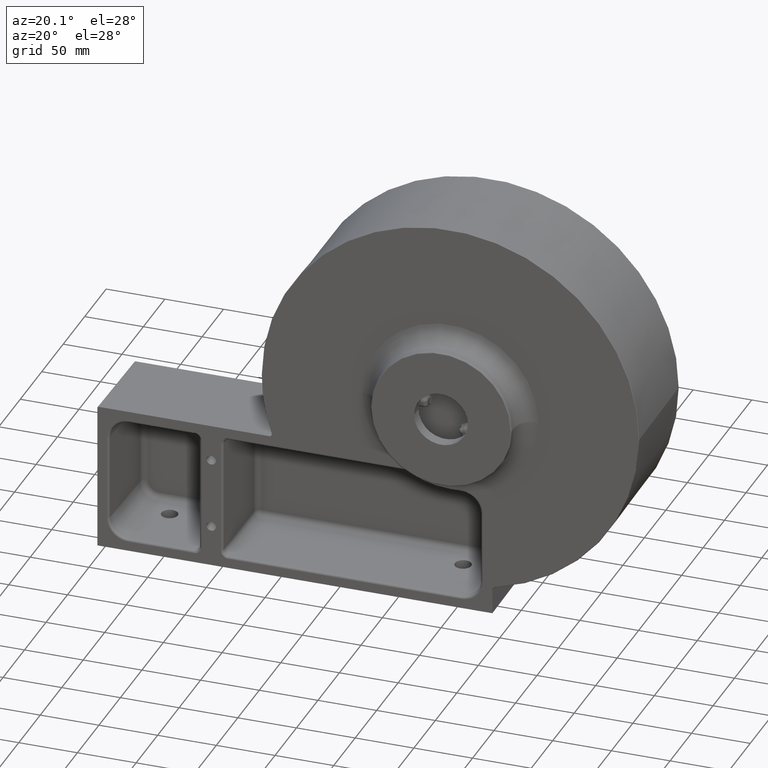
[diagram: clean part render]
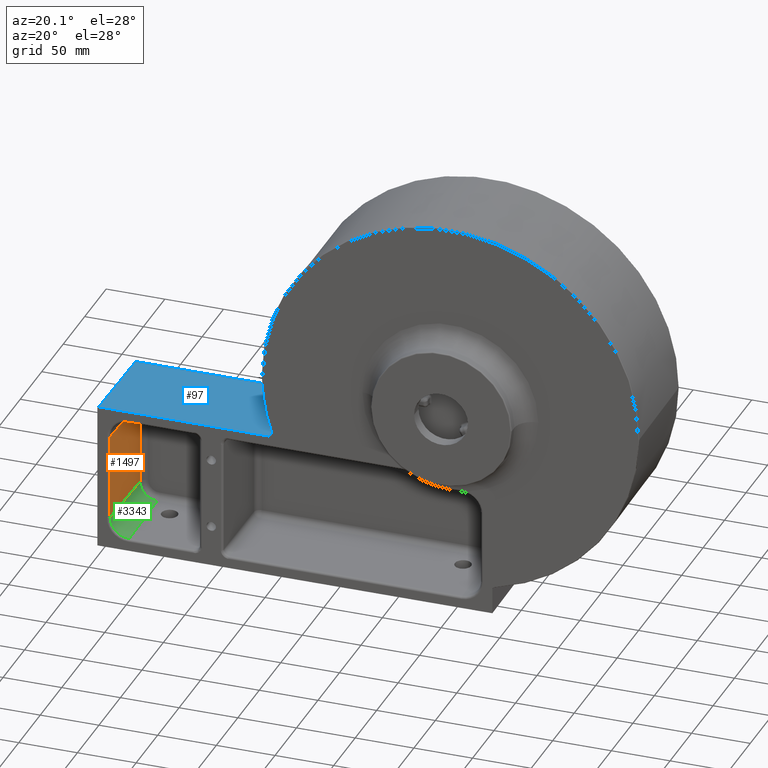
[diagram: same view with three faces highlighted in distinct colors, each labeled with its STEP entity id]
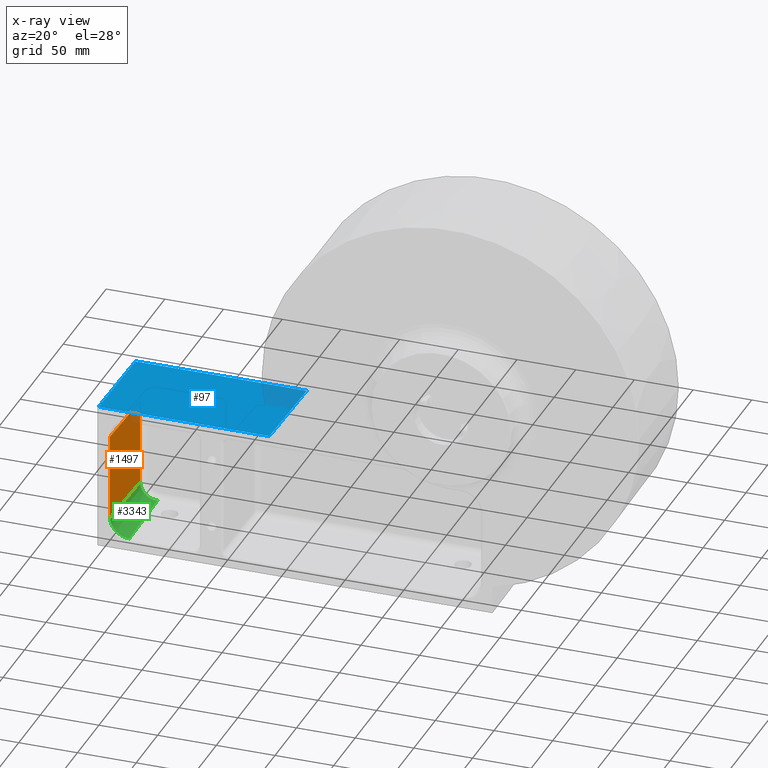
[diagram: x-ray of the same camera — body ghosted, the three highlighted faces saturated]
A machine part, auxiliary view with three faces highlighted in distinct colors.
The next image is the same camera in x-ray (body ghosted, the three faces saturated) — at least one of them is partly hidden behind the body in this view.
Their STEP definitions:

[orange] entity #1497 — the highlighted planar face has unit normal (-0.9997, 0.0262, 0).
#712 = DIRECTION ( 'NONE',  ( -0.9996573249755573709, 0.02617694830787333643, 7.628645611379419162E-16 ) ) ;
#837 = CARTESIAN_POINT ( 'NONE',  ( -290.6907828541067147, 23.74703707613694803, -153.4999999999999432 ) ) ;
#1096 = VERTEX_POINT ( 'NONE', #2088 ) ;
#1133 = CARTESIAN_POINT ( 'NONE',  ( -290.7417837622144816, 21.79939097275270043, -153.4999999999999432 ) ) ;
#1252 = VERTEX_POINT ( 'NONE', #9086 ) ;
#1446 = FACE_OUTER_BOUND ( 'NONE', #9372, .T. ) ;
#1497 = ADVANCED_FACE ( 'NONE', ( #1446 ), #4405, .F. ) ;
#1585 = ORIENTED_EDGE ( 'NONE', *, *, #5652, .F. ) ;
#1786 = ORIENTED_EDGE ( 'NONE', *, *, #4000, .F. ) ;
#1876 = DIRECTION ( 'NONE',  ( -0.02617694830787333296, -0.9996573249755572599, 1.997631156587039436E-17 ) ) ;
#2088 = CARTESIAN_POINT ( 'NONE',  ( -290.6907828541066579, 23.74703707613694803, -80.75821623778543312 ) ) ;
#2347 = CARTESIAN_POINT ( 'NONE',  ( -288.9838996795023149, 88.93027571429206546, -80.75821623778543312 ) ) ;
#2474 = DIRECTION ( 'NONE',  ( 7.631260653810491588E-16, -9.810842758281116247E-32, 1.000000000000000000 ) ) ;
#3213 = VECTOR ( 'NONE', #9257, 1000.000000000000000 ) ;
#3311 = LINE ( 'NONE', #6275, #3213 ) ;
#3572 = ORIENTED_EDGE ( 'NONE', *, *, #7507, .F. ) ;
#3682 = DIRECTION ( 'NONE',  ( 0.02617694830787333296, 0.9996573249755572599, 0.0000000000000000000 ) ) ;
#4000 = EDGE_CURVE ( 'NONE', #8700, #1252, #3311, .T. ) ;
#4101 = DIRECTION ( 'NONE',  ( -0.02617694830787333296, -0.9996573249755572599, 0.0000000000000000000 ) ) ;
#4369 = ORIENTED_EDGE ( 'NONE', *, *, #9478, .T. ) ;
#4405 = PLANE ( 'NONE',  #5319 ) ;
#5319 = AXIS2_PLACEMENT_3D ( 'NONE', #7387, #712, #3682 ) ;
#5652 = EDGE_CURVE ( 'NONE', #8688, #1096, #6169, .T. ) ;
#6169 = LINE ( 'NONE', #9148, #9598 ) ;
#6275 = CARTESIAN_POINT ( 'NONE',  ( -288.9838996795023718, 88.93027571429207967, -153.4999999999999432 ) ) ;
#6294 = LINE ( 'NONE', #8544, #6533 ) ;
#6533 = VECTOR ( 'NONE', #1876, 1000.000000000000114 ) ;
#6813 = VECTOR ( 'NONE', #4101, 1000.000000000000114 ) ;
#7387 = CARTESIAN_POINT ( 'NONE',  ( -290.7417837622144816, 21.79939097275269688, -153.4999999999999432 ) ) ;
#7507 = EDGE_CURVE ( 'NONE', #1252, #8688, #7804, .T. ) ;
#7804 = LINE ( 'NONE', #1133, #6813 ) ;
#8544 = CARTESIAN_POINT ( 'NONE',  ( -290.7417837622144248, 21.79939097275269688, -80.75821623778543312 ) ) ;
#8688 = VERTEX_POINT ( 'NONE', #837 ) ;
#8700 = VERTEX_POINT ( 'NONE', #2347 ) ;
#9086 = CARTESIAN_POINT ( 'NONE',  ( -288.9838996795023718, 88.93027571429205125, -153.4999999999999432 ) ) ;
#9148 = CARTESIAN_POINT ( 'NONE',  ( -290.6907828541067147, 23.74703707613694803, -153.4999999999999432 ) ) ;
#9257 = DIRECTION ( 'NONE',  ( -7.631260653810491588E-16, 9.810842758281116247E-32, -1.000000000000000000 ) ) ;
#9372 = EDGE_LOOP ( 'NONE', ( #3572, #1786, #4369, #1585 ) ) ;
#9478 = EDGE_CURVE ( 'NONE', #8700, #1096, #6294, .T. ) ;
#9598 = VECTOR ( 'NONE', #2474, 1000.000000000000000 ) ;

[blue] entity #97 — the highlighted planar face has unit normal (0, 0.0087, 1).
#97 = ADVANCED_FACE ( 'NONE', ( #1079 ), #6283, .T. ) ;
#101 = CARTESIAN_POINT ( 'NONE',  ( -154.1860112702542835, 21.96579213033545841, -54.25966839868794978 ) ) ;
#324 = CARTESIAN_POINT ( 'NONE',  ( -299.0086887894050847, 105.8081175082510725, -54.99134928753080231 ) ) ;
#682 = CARTESIAN_POINT ( 'NONE',  ( -154.1999868813711316, 22.30375424050180300, -54.26261774934165771 ) ) ;
#764 = ORIENTED_EDGE ( 'NONE', *, *, #8471, .F. ) ;
#905 = VERTEX_POINT ( 'NONE', #6821 ) ;
#996 = VERTEX_POINT ( 'NONE', #2535 ) ;
#1079 = FACE_OUTER_BOUND ( 'NONE', #1199, .T. ) ;
#1199 = EDGE_LOOP ( 'NONE', ( #3546, #764, #3800, #5769, #1737 ) ) ;
#1504 = EDGE_CURVE ( 'NONE', #905, #7966, #4231, .T. ) ;
#1566 = EDGE_CURVE ( 'NONE', #7966, #996, #3768, .T. ) ;
#1599 = CARTESIAN_POINT ( 'NONE',  ( -298.9746051019361630, 109.7137212467378333, -55.02543297499966712 ) ) ;
#1737 = ORIENTED_EDGE ( 'NONE', *, *, #1566, .F. ) ;
#1809 = LINE ( 'NONE', #4768, #8540 ) ;
#2083 = CARTESIAN_POINT ( 'NONE',  ( -299.7418218391503615, 21.79939097275270043, -54.25821623778549707 ) ) ;
#2165 = VECTOR ( 'NONE', #2281, 1000.000000000000000 ) ;
#2269 = VECTOR ( 'NONE', #4561, 1000.000000000000114 ) ;
#2281 = DIRECTION ( 'NONE',  ( 1.000000000000000000, -1.242786967863980845E-16, -1.925929944387235853E-34 ) ) ;
#2535 = CARTESIAN_POINT ( 'NONE',  ( -154.1519396191328326, 21.79939097275268267, -54.25821623778549707 ) ) ;
#2590 = DIRECTION ( 'NONE',  ( 1.084522459198156159E-18, 0.008726535498373953759, 0.9999619230641713097 ) ) ;
#2955 = CARTESIAN_POINT ( 'NONE',  ( -153.5212454354825695, 77.97334359175704321, -54.74843889557589449 ) ) ;
#3090 = CARTESIAN_POINT ( 'NONE',  ( -154.1519396191328326, 21.79939097275268267, -54.25821623778549707 ) ) ;
#3546 = ORIENTED_EDGE ( 'NONE', *, *, #1504, .F. ) ;
#3651 = AXIS2_PLACEMENT_3D ( 'NONE', #9265, #2590, #5554 ) ;
#3768 = B_SPLINE_CURVE_WITH_KNOTS ( 'NONE', 3,
 ( #3812, #6788, #101, #3090 ),
 .UNSPECIFIED., .F., .F.,
 ( 4, 4 ),
 ( 0.0000000000000000000, 0.0005066657858659352623 ),
 .UNSPECIFIED. ) ;
#3800 = ORIENTED_EDGE ( 'NONE', *, *, #4254, .F. ) ;
#3812 = CARTESIAN_POINT ( 'NONE',  ( -154.1999868813711316, 22.30375424050180300, -54.26261774934165771 ) ) ;
#4231 = B_SPLINE_CURVE_WITH_KNOTS ( 'NONE', 3,
 ( #9627, #2955, #5925, #8893 ),
 .UNSPECIFIED., .F., .F.,
 ( 4, 4 ),
 ( 0.0000000000000000000, 0.08351376979501280717 ),
 .UNSPECIFIED. ) ;
#4254 = EDGE_CURVE ( 'NONE', #7284, #5677, #6031, .T. ) ;
#4561 = DIRECTION ( 'NONE',  ( 0.008726203243944361324, 0.9999238504775704861, -0.008726203243944238158 ) ) ;
#4768 = CARTESIAN_POINT ( 'NONE',  ( 35.00000000000000711, 105.8081175082510299, -54.99134928753080231 ) ) ;
#5554 = DIRECTION ( 'NONE',  ( 0.0000000000000000000, -0.9999619230641713097, 0.008726535498373953759 ) ) ;
#5677 = VERTEX_POINT ( 'NONE', #324 ) ;
#5769 = ORIENTED_EDGE ( 'NONE', *, *, #8062, .T. ) ;
#5925 = CARTESIAN_POINT ( 'NONE',  ( -153.8611743811716508, 50.13855569879653018, -54.50552838165021541 ) ) ;
#5982 = LINE ( 'NONE', #8952, #2165 ) ;
#6031 = LINE ( 'NONE', #1599, #2269 ) ;
#6283 = PLANE ( 'NONE',  #3651 ) ;
#6788 = CARTESIAN_POINT ( 'NONE',  ( -154.2020542623832284, 22.13391062500024020, -54.26113554656407700 ) ) ;
#6821 = CARTESIAN_POINT ( 'NONE',  ( -153.1801776014511915, 105.8081175082510583, -54.99134928753080231 ) ) ;
#7284 = VERTEX_POINT ( 'NONE', #2083 ) ;
#7747 = DIRECTION ( 'NONE',  ( 1.000000000000000000, -1.242786967863980845E-16, -1.466530606543666344E-38 ) ) ;
#7966 = VERTEX_POINT ( 'NONE', #682 ) ;
#8062 = EDGE_CURVE ( 'NONE', #7284, #996, #5982, .T. ) ;
#8471 = EDGE_CURVE ( 'NONE', #5677, #905, #1809, .T. ) ;
#8540 = VECTOR ( 'NONE', #7747, 1000.000000000000000 ) ;
#8893 = CARTESIAN_POINT ( 'NONE',  ( -154.1999868813711316, 22.30375424050180300, -54.26261774934165771 ) ) ;
#8952 = CARTESIAN_POINT ( 'NONE',  ( 34.99999999999999289, 21.79939097275265780, -54.25821623778549707 ) ) ;
#9265 = CARTESIAN_POINT ( 'NONE',  ( 35.00000000000000711, 106.7993909727526614, -54.99999999999999289 ) ) ;
#9627 = CARTESIAN_POINT ( 'NONE',  ( -153.1801776014511915, 105.8081175082510583, -54.99134928753080231 ) ) ;

[green] entity #3343 — the highlighted conical surface has half-angle 1.5 deg.
#832 = CIRCLE ( 'NONE', #3325, 14.74211591728791149 ) ;
#837 = CARTESIAN_POINT ( 'NONE',  ( -290.6907828541067147, 23.74703707613694803, -153.4999999999999432 ) ) ;
#900 = CARTESIAN_POINT ( 'NONE',  ( -274.2417837622144816, 21.79939097275269688, -153.4999999999999432 ) ) ;
#949 = CONICAL_SURFACE ( 'NONE', #5147, 16.50000000000001421, 0.02617993877991500046 ) ;
#1133 = CARTESIAN_POINT ( 'NONE',  ( -290.7417837622144816, 21.79939097275270043, -153.4999999999999432 ) ) ;
#1164 = DIRECTION ( 'NONE',  ( -1.293633213678236133E-16, -0.9996573249755572599, -0.02617694830787321153 ) ) ;
#1203 = VERTEX_POINT ( 'NONE', #7495 ) ;
#1214 = EDGE_CURVE ( 'NONE', #1252, #1203, #832, .T. ) ;
#1252 = VERTEX_POINT ( 'NONE', #9086 ) ;
#1456 = EDGE_LOOP ( 'NONE', ( #3550, #5823, #7484, #3390 ) ) ;
#2242 = CARTESIAN_POINT ( 'NONE',  ( -274.2417837622144816, 23.74703707613679171, -153.4999999999999432 ) ) ;
#2323 = DIRECTION ( 'NONE',  ( -1.242786967863980845E-16, -1.000000000000000000, 0.0000000000000000000 ) ) ;
#3325 = AXIS2_PLACEMENT_3D ( 'NONE', #8998, #2323, #5280 ) ;
#3343 = ADVANCED_FACE ( 'NONE', ( #7575 ), #949, .F. ) ;
#3390 = ORIENTED_EDGE ( 'NONE', *, *, #6912, .F. ) ;
#3548 = AXIS2_PLACEMENT_3D ( 'NONE', #2242, #5197, #8177 ) ;
#3550 = ORIENTED_EDGE ( 'NONE', *, *, #5745, .F. ) ;
#3865 = DIRECTION ( 'NONE',  ( -1.242786967863980845E-16, -1.000000000000000000, 0.0000000000000000000 ) ) ;
#4101 = DIRECTION ( 'NONE',  ( -0.02617694830787333296, -0.9996573249755572599, 0.0000000000000000000 ) ) ;
#4853 = LINE ( 'NONE', #7834, #6948 ) ;
#5147 = AXIS2_PLACEMENT_3D ( 'NONE', #900, #3865, #6841 ) ;
#5197 = DIRECTION ( 'NONE',  ( 1.242786967863980845E-16, 1.000000000000000000, 0.0000000000000000000 ) ) ;
#5280 = DIRECTION ( 'NONE',  ( -1.000000000000000000, 0.0000000000000000000, 0.0000000000000000000 ) ) ;
#5745 = EDGE_CURVE ( 'NONE', #1203, #7708, #4853, .T. ) ;
#5823 = ORIENTED_EDGE ( 'NONE', *, *, #1214, .F. ) ;
#6813 = VECTOR ( 'NONE', #4101, 1000.000000000000114 ) ;
#6841 = DIRECTION ( 'NONE',  ( -1.000000000000000000, 2.102695122396127944E-16, 0.0000000000000000000 ) ) ;
#6912 = EDGE_CURVE ( 'NONE', #7708, #8688, #7739, .T. ) ;
#6948 = VECTOR ( 'NONE', #1164, 1000.000000000000114 ) ;
#7484 = ORIENTED_EDGE ( 'NONE', *, *, #7507, .T. ) ;
#7495 = CARTESIAN_POINT ( 'NONE',  ( -274.2417837622145953, 88.93027571429206546, -168.2421159172878617 ) ) ;
#7507 = EDGE_CURVE ( 'NONE', #1252, #8688, #7804, .T. ) ;
#7575 = FACE_OUTER_BOUND ( 'NONE', #1456, .T. ) ;
#7708 = VERTEX_POINT ( 'NONE', #7737 ) ;
#7737 = CARTESIAN_POINT ( 'NONE',  ( -274.2417837622145953, 23.74703707613694803, -169.9489990918921762 ) ) ;
#7739 = CIRCLE ( 'NONE', #3548, 16.44899909189223663 ) ;
#7804 = LINE ( 'NONE', #1133, #6813 ) ;
#7834 = CARTESIAN_POINT ( 'NONE',  ( -274.2417837622145953, 21.79939097275269688, -169.9999999999999432 ) ) ;
#8177 = DIRECTION ( 'NONE',  ( 1.000000000000000000, -2.109214629152551644E-16, -1.687371703322041315E-15 ) ) ;
#8688 = VERTEX_POINT ( 'NONE', #837 ) ;
#8998 = CARTESIAN_POINT ( 'NONE',  ( -274.2417837622144816, 88.93027571429206546, -153.4999999999999432 ) ) ;
#9086 = CARTESIAN_POINT ( 'NONE',  ( -288.9838996795023718, 88.93027571429205125, -153.4999999999999432 ) ) ;